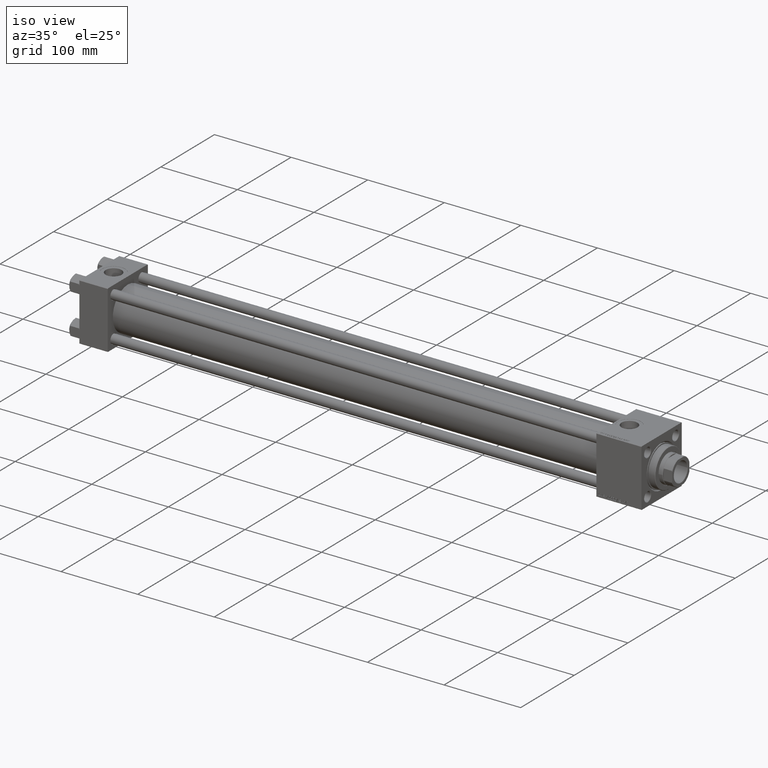
[diagram: clean part render]
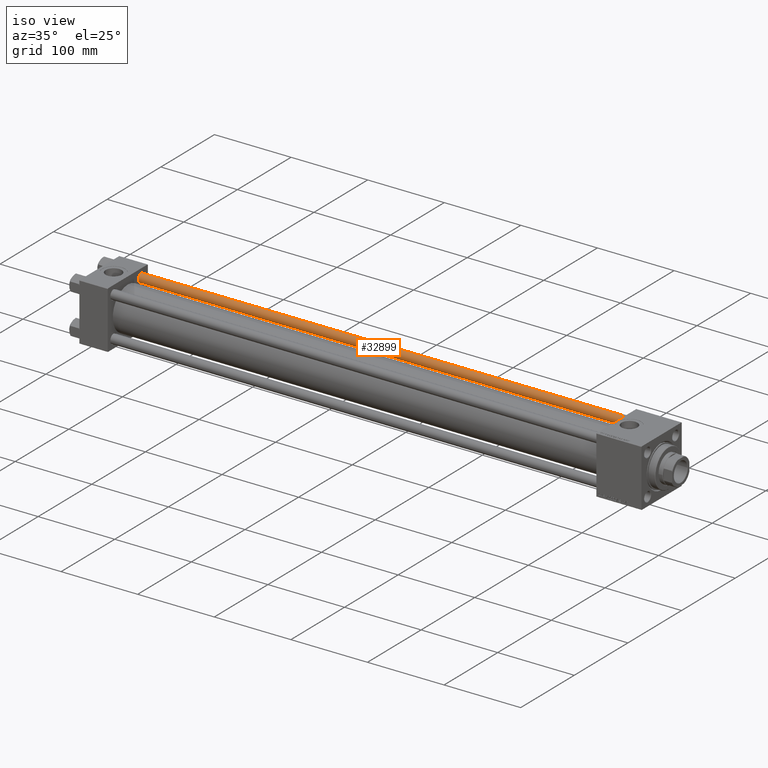
[diagram: same view with one face highlighted and labeled with its STEP entity id]
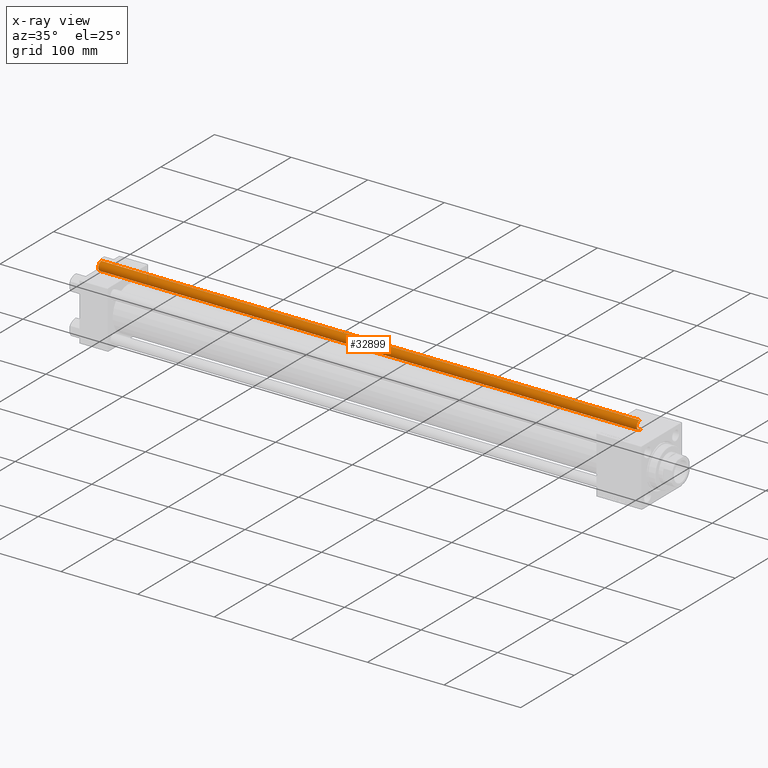
[diagram: x-ray of the same camera — body ghosted, the highlighted face saturated]
A machine part, iso view. The second image highlights one B-rep face of the part: STEP entity #32899.
The next image is the same camera in x-ray: the body ghosted, the highlighted face saturated — about 0% of this face is hidden behind the body in this view.
In plain terms, the highlighted cylindrical surface (edge-blend (fillet) strip) has radius 6 mm, axis along (-1, 0, 0).
Its self-contained STEP definition (entity closure, byte-faithful):
#131 = VERTEX_POINT ( 'NONE', #38922 ) ;
#1750 = FACE_OUTER_BOUND ( 'NONE', #26585, .T. ) ;
#1879 = ORIENTED_EDGE ( 'NONE', *, *, #36276, .T. ) ;
#2327 = CIRCLE ( 'NONE', #27442, 6.000000000000000888 ) ;
#3263 = DIRECTION ( 'NONE',  ( 1.000000000000000000, 0.000000000000000000, 0.000000000000000000 ) ) ;
#3756 = CARTESIAN_POINT ( 'NONE',  ( 0.000000000000000000, 0.000000000000000000, 703.5000000000000000 ) ) ;
#4011 = DIRECTION ( 'NONE',  ( 0.000000000000000000, 0.000000000000000000, -1.000000000000000000 ) ) ;
#5107 = CARTESIAN_POINT ( 'NONE',  ( 0.000000000000000000, 0.000000000000000000, 0.4999999999998339106 ) ) ;
#7654 = CARTESIAN_POINT ( 'NONE',  ( 6.000000000000000888, 7.347880794884120722E-16, 0.4999999999998339106 ) ) ;
#9659 = VECTOR ( 'NONE', #15784, 1000.000000000000000 ) ;
#11480 = CARTESIAN_POINT ( 'NONE',  ( 6.000000000000000888, 7.347880794884120722E-16, 704.0000000000000000 ) ) ;
#13044 = EDGE_CURVE ( 'NONE', #39081, #131, #2327, .T. ) ;
#13550 = CARTESIAN_POINT ( 'NONE',  ( -6.000000000000000888, 0.000000000000000000, 704.0000000000000000 ) ) ;
#13937 = CARTESIAN_POINT ( 'NONE',  ( 0.000000000000000000, 0.000000000000000000, 704.0000000000000000 ) ) ;
#14090 = EDGE_CURVE ( 'NONE', #39081, #36442, #38408, .T. ) ;
#14183 = CARTESIAN_POINT ( 'NONE',  ( 6.000000000000000888, 7.347880794884120722E-16, 703.5000000000000000 ) ) ;
#15784 = DIRECTION ( 'NONE',  ( -0.000000000000000000, -0.000000000000000000, -1.000000000000000000 ) ) ;
#16372 = CARTESIAN_POINT ( 'NONE',  ( -6.000000000000000888, 0.000000000000000000, 0.4999999999998339106 ) ) ;
#16527 = AXIS2_PLACEMENT_3D ( 'NONE', #13937, #29193, #25121 ) ;
#20095 = DIRECTION ( 'NONE',  ( -0.000000000000000000, -0.000000000000000000, 1.000000000000000000 ) ) ;
#21420 = DIRECTION ( 'NONE',  ( -0.000000000000000000, -0.000000000000000000, -1.000000000000000000 ) ) ;
#25121 = DIRECTION ( 'NONE',  ( -1.000000000000000000, 0.000000000000000000, 0.000000000000000000 ) ) ;
#25608 = VECTOR ( 'NONE', #21420, 1000.000000000000000 ) ;
#26585 = EDGE_LOOP ( 'NONE', ( #43378, #39769, #1879, #49767 ) ) ;
#27442 = AXIS2_PLACEMENT_3D ( 'NONE', #3756, #4011, #3263 ) ;
#29193 = DIRECTION ( 'NONE',  ( -0.000000000000000000, -0.000000000000000000, -1.000000000000000000 ) ) ;
#31784 = DIRECTION ( 'NONE',  ( 1.000000000000000000, 0.000000000000000000, 0.000000000000000000 ) ) ;
#32603 = LINE ( 'NONE', #13550, #25608 ) ;
#32899 = ADVANCED_FACE ( 'NONE', ( #1750 ), #40344, .T. ) ;
#35572 = VERTEX_POINT ( 'NONE', #16372 ) ;
#36276 = EDGE_CURVE ( 'NONE', #131, #35572, #32603, .T. ) ;
#36442 = VERTEX_POINT ( 'NONE', #7654 ) ;
#37351 = EDGE_CURVE ( 'NONE', #35572, #36442, #48323, .T. ) ;
#38408 = LINE ( 'NONE', #11480, #9659 ) ;
#38922 = CARTESIAN_POINT ( 'NONE',  ( -6.000000000000000888, 0.000000000000000000, 703.5000000000000000 ) ) ;
#39081 = VERTEX_POINT ( 'NONE', #14183 ) ;
#39769 = ORIENTED_EDGE ( 'NONE', *, *, #13044, .T. ) ;
#40344 = CYLINDRICAL_SURFACE ( 'NONE', #16527, 6.000000000000000888 ) ;
#43378 = ORIENTED_EDGE ( 'NONE', *, *, #14090, .F. ) ;
#45050 = AXIS2_PLACEMENT_3D ( 'NONE', #5107, #20095, #31784 ) ;
#48323 = CIRCLE ( 'NONE', #45050, 6.000000000000000888 ) ;
#49767 = ORIENTED_EDGE ( 'NONE', *, *, #37351, .T. ) ;